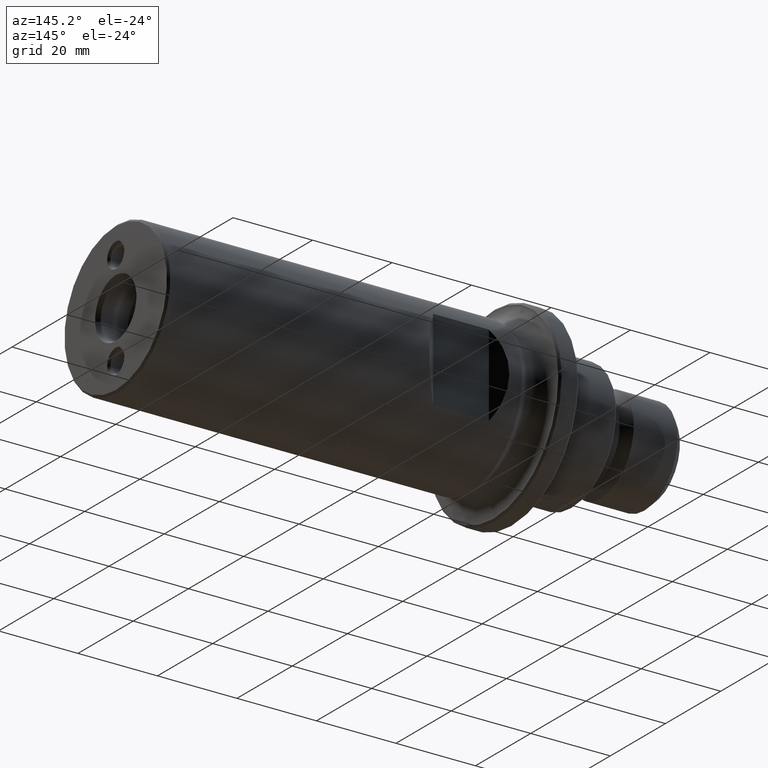
[diagram: clean part render]
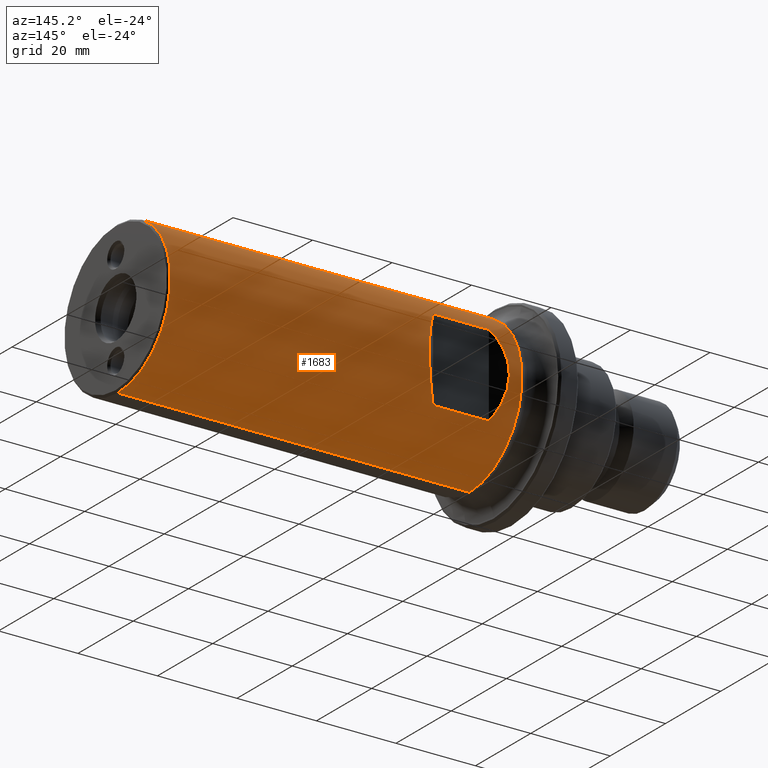
[diagram: same view with one face highlighted and labeled with its STEP entity id]
A machine part, auxiliary view. The second image highlights one B-rep face of the part: STEP entity #1683.
In plain terms, the highlighted cylindrical surface (partial cylindrical patch) has radius 19.05 mm, axis along (1, -0, -0).
Its self-contained STEP definition (entity closure, byte-faithful):
#71 = CARTESIAN_POINT ( 'NONE',  ( -68.75000000000000000, 15.99999999999998900, 10.33936651831243700 ) ) ;
#75 = CARTESIAN_POINT ( 'NONE',  ( -68.75000000000000000, 15.99999999999998900, -10.33936651831243800 ) ) ;
#82 = CARTESIAN_POINT ( 'NONE',  ( -82.75000000000001400, 15.99999999999998900, -10.33936651831243800 ) ) ;
#98 = CARTESIAN_POINT ( 'NONE',  ( -82.75000000000001400, 15.99999999999998900, 10.33936651831242900 ) ) ;
#107 = CARTESIAN_POINT ( 'NONE',  ( -89.00000000000000000, 0.0000000000000000000, -19.04999999999999000 ) ) ;
#115 = CARTESIAN_POINT ( 'NONE',  ( -89.00000000000000000, 2.332952152375706900E-015, 19.04999999999999000 ) ) ;
#126 = CARTESIAN_POINT ( 'NONE',  ( -0.5000000000000004400, 0.0000000000000000000, -19.04999999999999400 ) ) ;
#224 = CARTESIAN_POINT ( 'NONE',  ( -0.5000000000000004400, 2.332952152375706900E-015, 19.04999999999999400 ) ) ;
#329 = EDGE_CURVE ( 'NONE', #1101, #1102, #1441, .T. ) ;
#341 = EDGE_CURVE ( 'NONE', #1114, #1115, #1824, .T. ) ;
#369 = EDGE_CURVE ( 'NONE', #1129, #1126, #385, .T. ) ;
#370 = EDGE_CURVE ( 'NONE', #1117, #1129, #1817, .T. ) ;
#371 = EDGE_CURVE ( 'NONE', #1131, #1117, #388, .T. ) ;
#372 = EDGE_CURVE ( 'NONE', #1126, #1131, #1812, .T. ) ;
#374 = EDGE_CURVE ( 'NONE', #1115, #1101, #1809, .T. ) ;
#376 = EDGE_CURVE ( 'NONE', #1114, #1102, #1815, .T. ) ;
#385 =( BOUNDED_CURVE ( )  B_SPLINE_CURVE ( 3, ( #481, #504, #492, #480 ),
 .UNSPECIFIED., .F., .F. ) 
 B_SPLINE_CURVE_WITH_KNOTS ( ( 4, 4 ),
 ( 5.709478738346772900, 6.856891876012399600 ),
 .UNSPECIFIED. ) 
 CURVE ( )  GEOMETRIC_REPRESENTATION_ITEM ( )  RATIONAL_B_SPLINE_CURVE ( ( 1.000000000000000000, 0.8932633420822393400, 0.8932633420822393400, 1.000000000000000000 ) ) 
 REPRESENTATION_ITEM ( '' )  );
#388 =( BOUNDED_CURVE ( )  B_SPLINE_CURVE ( 3, ( #474, #477, #491, #472 ),
 .UNSPECIFIED., .F., .F. ) 
 B_SPLINE_CURVE_WITH_KNOTS ( ( 4, 4 ),
 ( 2.567886084756980200, 3.715299222422606000 ),
 .UNSPECIFIED. ) 
 CURVE ( )  GEOMETRIC_REPRESENTATION_ITEM ( )  RATIONAL_B_SPLINE_CURVE ( ( 1.000000000000000000, 0.8932633420822395600, 0.8932633420822395600, 1.000000000000000000 ) ) 
 REPRESENTATION_ITEM ( '' )  );
#454 = CARTESIAN_POINT ( 'NONE',  ( 0.0000000000000000000, 0.0000000000000000000, -19.04999999999999400 ) ) ;
#465 = DIRECTION ( 'NONE',  ( 1.000000000000000000, -0.0000000000000000000, -0.0000000000000000000 ) ) ;
#467 = DIRECTION ( 'NONE',  ( 0.0000000000000000000, 0.0000000000000000000, -1.000000000000000000 ) ) ;
#468 = DIRECTION ( 'NONE',  ( -1.000000000000000000, 0.0000000000000000000, 0.0000000000000000000 ) ) ;
#469 = CARTESIAN_POINT ( 'NONE',  ( 0.0000000000000000000, 2.332952152375706900E-015, 19.04999999999999400 ) ) ;
#470 = CARTESIAN_POINT ( 'NONE',  ( -0.5000000000000004400, 0.0000000000000000000, 0.0000000000000000000 ) ) ;
#471 = DIRECTION ( 'NONE',  ( -1.000000000000000000, 0.0000000000000000000, 0.0000000000000000000 ) ) ;
#472 = CARTESIAN_POINT ( 'NONE',  ( -82.75000000000001400, 15.99999999999998900, 10.33936651831242900 ) ) ;
#473 = CARTESIAN_POINT ( 'NONE',  ( 0.0000000000000000000, 15.99999999999998200, -10.33936651831243800 ) ) ;
#474 = CARTESIAN_POINT ( 'NONE',  ( -82.75000000000001400, 15.99999999999998900, -10.33936651831243800 ) ) ;
#475 = DIRECTION ( 'NONE',  ( 1.000000000000000000, -0.0000000000000000000, -0.0000000000000000000 ) ) ;
#477 = CARTESIAN_POINT ( 'NONE',  ( -86.93814887365330400, 20.18814887365327600, -3.858274871182212400 ) ) ;
#478 = DIRECTION ( 'NONE',  ( 1.000000000000000000, -0.0000000000000000000, -0.0000000000000000000 ) ) ;
#480 = CARTESIAN_POINT ( 'NONE',  ( -68.75000000000000000, 15.99999999999998900, -10.33936651831243800 ) ) ;
#481 = CARTESIAN_POINT ( 'NONE',  ( -68.75000000000000000, 15.99999999999998900, 10.33936651831243700 ) ) ;
#491 = CARTESIAN_POINT ( 'NONE',  ( -86.93814887365333300, 20.18814887365327900, 3.858274871182206100 ) ) ;
#492 = CARTESIAN_POINT ( 'NONE',  ( -64.56185112634673800, 20.18814887365327900, -3.858274871182211900 ) ) ;
#496 = CARTESIAN_POINT ( 'NONE',  ( 0.0000000000000000000, 15.99999999999998200, 10.33936651831243800 ) ) ;
#504 = CARTESIAN_POINT ( 'NONE',  ( -64.56185112634673800, 20.18814887365327600, 3.858274871182217700 ) ) ;
#601 = DIRECTION ( 'NONE',  ( 0.0000000000000000000, 0.0000000000000000000, -1.000000000000000000 ) ) ;
#603 = DIRECTION ( 'NONE',  ( 1.000000000000000000, -0.0000000000000000000, -0.0000000000000000000 ) ) ;
#604 = CARTESIAN_POINT ( 'NONE',  ( -89.00000000000000000, 0.0000000000000000000, 0.0000000000000000000 ) ) ;
#649 = EDGE_LOOP ( 'NONE', ( #1189, #1311, #1204, #1235 ) ) ;
#681 = EDGE_LOOP ( 'NONE', ( #1304, #1196, #1257, #1219 ) ) ;
#744 = AXIS2_PLACEMENT_3D ( 'NONE', #2094, #2220, #2047 ) ;
#1101 = VERTEX_POINT ( 'NONE', #224 ) ;
#1102 = VERTEX_POINT ( 'NONE', #126 ) ;
#1114 = VERTEX_POINT ( 'NONE', #107 ) ;
#1115 = VERTEX_POINT ( 'NONE', #115 ) ;
#1117 = VERTEX_POINT ( 'NONE', #98 ) ;
#1126 = VERTEX_POINT ( 'NONE', #75 ) ;
#1129 = VERTEX_POINT ( 'NONE', #71 ) ;
#1131 = VERTEX_POINT ( 'NONE', #82 ) ;
#1189 = ORIENTED_EDGE ( 'NONE', *, *, #341, .T. ) ;
#1196 = ORIENTED_EDGE ( 'NONE', *, *, #370, .F. ) ;
#1204 = ORIENTED_EDGE ( 'NONE', *, *, #329, .T. ) ;
#1219 = ORIENTED_EDGE ( 'NONE', *, *, #372, .F. ) ;
#1235 = ORIENTED_EDGE ( 'NONE', *, *, #376, .F. ) ;
#1257 = ORIENTED_EDGE ( 'NONE', *, *, #371, .F. ) ;
#1304 = ORIENTED_EDGE ( 'NONE', *, *, #369, .F. ) ;
#1311 = ORIENTED_EDGE ( 'NONE', *, *, #374, .T. ) ;
#1332 = AXIS2_PLACEMENT_3D ( 'NONE', #604, #603, #601 ) ;
#1338 = AXIS2_PLACEMENT_3D ( 'NONE', #470, #468, #467 ) ;
#1441 = CIRCLE ( 'NONE', #1338, 19.04999999999999400 ) ;
#1683 = ADVANCED_FACE ( 'NONE', ( #1970, #1957 ), #1955, .T. ) ;
#1803 = VECTOR ( 'NONE', #465, 1000.000000000000000 ) ;
#1807 = VECTOR ( 'NONE', #475, 1000.000000000000000 ) ;
#1809 = LINE ( 'NONE', #469, #1807 ) ;
#1811 = VECTOR ( 'NONE', #471, 1000.000000000000000 ) ;
#1812 = LINE ( 'NONE', #473, #1811 ) ;
#1814 = VECTOR ( 'NONE', #478, 1000.000000000000000 ) ;
#1815 = LINE ( 'NONE', #454, #1803 ) ;
#1817 = LINE ( 'NONE', #496, #1814 ) ;
#1824 = CIRCLE ( 'NONE', #1332, 19.04999999999999000 ) ;
#1955 = CYLINDRICAL_SURFACE ( 'NONE', #744, 19.04999999999999400 ) ;
#1957 = FACE_OUTER_BOUND ( 'NONE', #649, .T. ) ;
#1970 = FACE_BOUND ( 'NONE', #681, .T. ) ;
#2047 = DIRECTION ( 'NONE',  ( 0.0000000000000000000, 0.0000000000000000000, -1.000000000000000000 ) ) ;
#2094 = CARTESIAN_POINT ( 'NONE',  ( 0.0000000000000000000, 0.0000000000000000000, 0.0000000000000000000 ) ) ;
#2220 = DIRECTION ( 'NONE',  ( 1.000000000000000000, -0.0000000000000000000, -0.0000000000000000000 ) ) ;